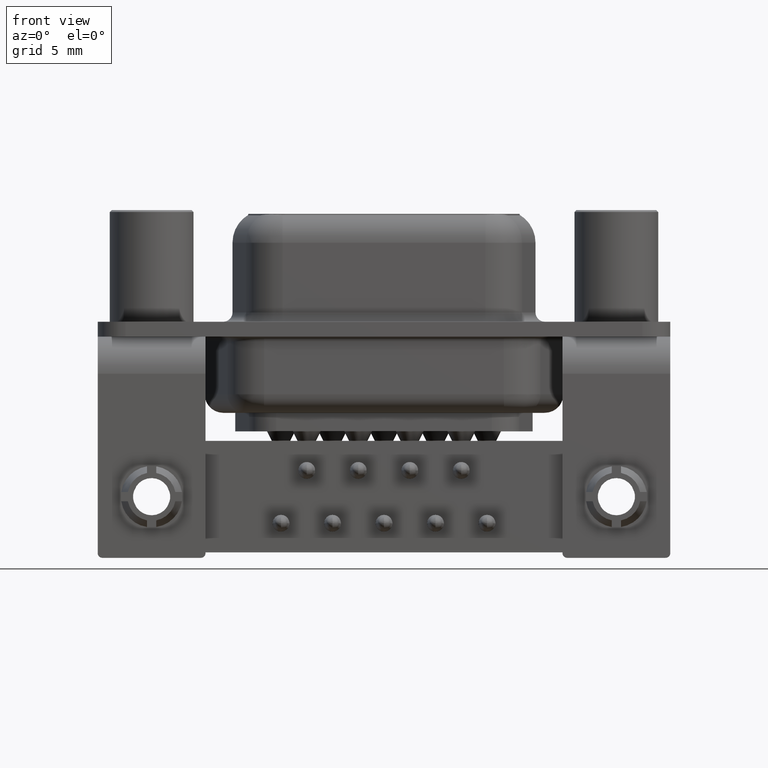
[diagram: clean part render]
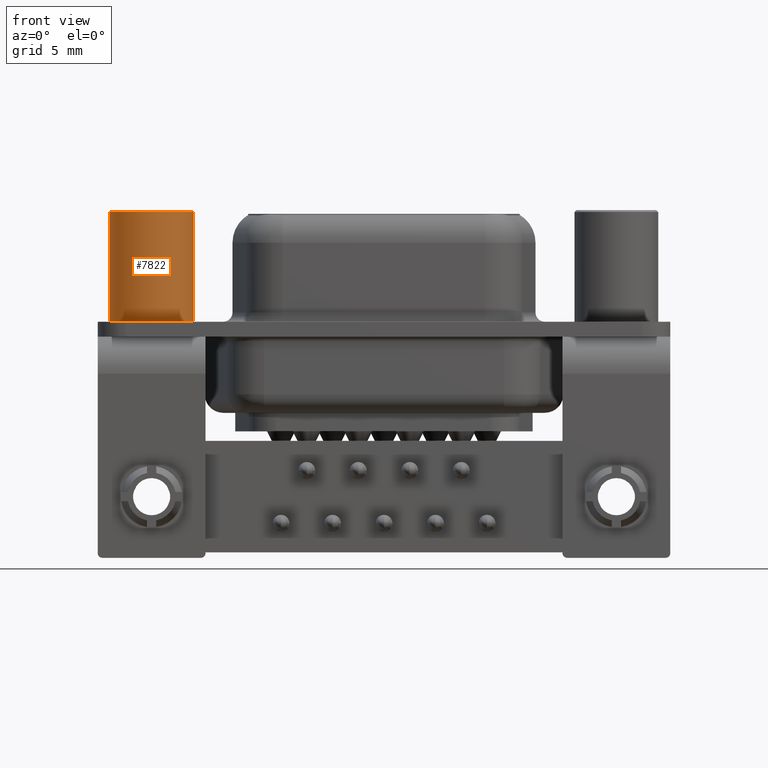
[diagram: same view with one face highlighted and labeled with its STEP entity id]
A machine part, front view. The second image highlights one B-rep face of the part: STEP entity #7822.
In plain terms, the highlighted cylindrical surface (partial cylindrical patch) has radius 2.25 mm, axis along (0, 0, 1).
Its self-contained STEP definition (entity closure, byte-faithful):
#45 = ORIENTED_EDGE ( 'NONE', *, *, #5221, .F. ) ;
#624 = CIRCLE ( 'NONE', #13457, 2.250000000000000000 ) ;
#1342 = VECTOR ( 'NONE', #12879, 1000.000000000000000 ) ;
#1534 = DIRECTION ( 'NONE',  ( -0.0000000000000000000, -0.0000000000000000000, 1.000000000000000000 ) ) ;
#1979 = FACE_OUTER_BOUND ( 'NONE', #17530, .T. ) ;
#2921 = VERTEX_POINT ( 'NONE', #13714 ) ;
#4215 = VECTOR ( 'NONE', #5951, 1000.000000000000000 ) ;
#4231 = CARTESIAN_POINT ( 'NONE',  ( 0.0000000000000000000, 0.0000000000000000000, 6.299999999999999800 ) ) ;
#4376 = EDGE_CURVE ( 'NONE', #2921, #19613, #624, .T. ) ;
#4383 = CARTESIAN_POINT ( 'NONE',  ( 2.250000000000000000, 0.0000000000000000000, 0.5806333143474410300 ) ) ;
#4994 = CARTESIAN_POINT ( 'NONE',  ( 0.0000000000000000000, 0.0000000000000000000, 0.4000000000000001900 ) ) ;
#5221 = EDGE_CURVE ( 'NONE', #2921, #6655, #19465, .T. ) ;
#5299 = ORIENTED_EDGE ( 'NONE', *, *, #4376, .T. ) ;
#5786 = DIRECTION ( 'NONE',  ( 1.000000000000000000, 0.0000000000000000000, 0.0000000000000000000 ) ) ;
#5951 = DIRECTION ( 'NONE',  ( -0.0000000000000000000, -0.0000000000000000000, 1.000000000000000000 ) ) ;
#6006 = CARTESIAN_POINT ( 'NONE',  ( 0.0000000000000000000, 0.0000000000000000000, 0.5806333143474410300 ) ) ;
#6117 = ORIENTED_EDGE ( 'NONE', *, *, #19477, .F. ) ;
#6655 = VERTEX_POINT ( 'NONE', #16910 ) ;
#7522 = DIRECTION ( 'NONE',  ( -0.0000000000000000000, -0.0000000000000000000, 1.000000000000000000 ) ) ;
#7655 = CARTESIAN_POINT ( 'NONE',  ( 2.250000000000000000, 0.0000000000000000000, 0.4000000000000001900 ) ) ;
#7822 = ADVANCED_FACE ( 'NONE', ( #1979 ), #9805, .T. ) ;
#8572 = AXIS2_PLACEMENT_3D ( 'NONE', #4231, #15164, #5786 ) ;
#9733 = VERTEX_POINT ( 'NONE', #10568 ) ;
#9805 = CYLINDRICAL_SURFACE ( 'NONE', #19955, 2.250000000000000000 ) ;
#9844 = ORIENTED_EDGE ( 'NONE', *, *, #10455, .T. ) ;
#10455 = EDGE_CURVE ( 'NONE', #19613, #9733, #16673, .T. ) ;
#10568 = CARTESIAN_POINT ( 'NONE',  ( 2.250000000000000000, 2.755455298081544300E-016, 6.299999999999999800 ) ) ;
#11308 = CARTESIAN_POINT ( 'NONE',  ( -2.250000000000000000, 2.755455298081544300E-016, 0.5806333143474410300 ) ) ;
#12239 = CIRCLE ( 'NONE', #8572, 2.250000000000000000 ) ;
#12879 = DIRECTION ( 'NONE',  ( -0.0000000000000000000, -0.0000000000000000000, 1.000000000000000000 ) ) ;
#13457 = AXIS2_PLACEMENT_3D ( 'NONE', #4994, #1534, #15268 ) ;
#13714 = CARTESIAN_POINT ( 'NONE',  ( -2.250000000000000000, 2.755455298081544300E-016, 0.4000000000000001900 ) ) ;
#13811 = DIRECTION ( 'NONE',  ( 1.000000000000000000, 0.0000000000000000000, 0.0000000000000000000 ) ) ;
#15164 = DIRECTION ( 'NONE',  ( -0.0000000000000000000, -0.0000000000000000000, 1.000000000000000000 ) ) ;
#15268 = DIRECTION ( 'NONE',  ( 1.000000000000000000, 0.0000000000000000000, 0.0000000000000000000 ) ) ;
#16673 = LINE ( 'NONE', #4383, #4215 ) ;
#16910 = CARTESIAN_POINT ( 'NONE',  ( -2.250000000000000000, 0.0000000000000000000, 6.299999999999999800 ) ) ;
#17530 = EDGE_LOOP ( 'NONE', ( #45, #5299, #9844, #6117 ) ) ;
#19465 = LINE ( 'NONE', #11308, #1342 ) ;
#19477 = EDGE_CURVE ( 'NONE', #6655, #9733, #12239, .T. ) ;
#19613 = VERTEX_POINT ( 'NONE', #7655 ) ;
#19955 = AXIS2_PLACEMENT_3D ( 'NONE', #6006, #7522, #13811 ) ;